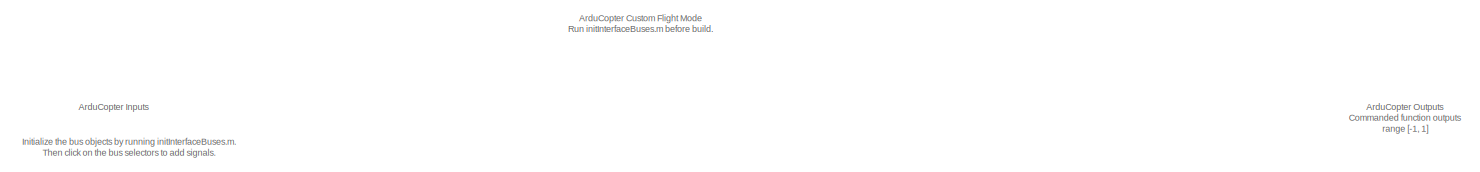
[diagram: root canvas - part 1/3, full width, top band]
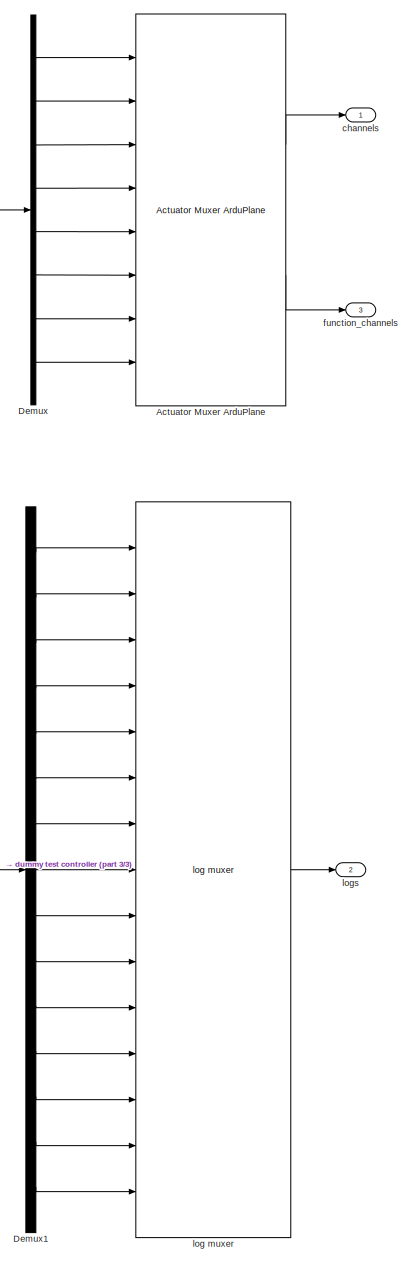
[diagram: root canvas - part 2/3, right side, full height]
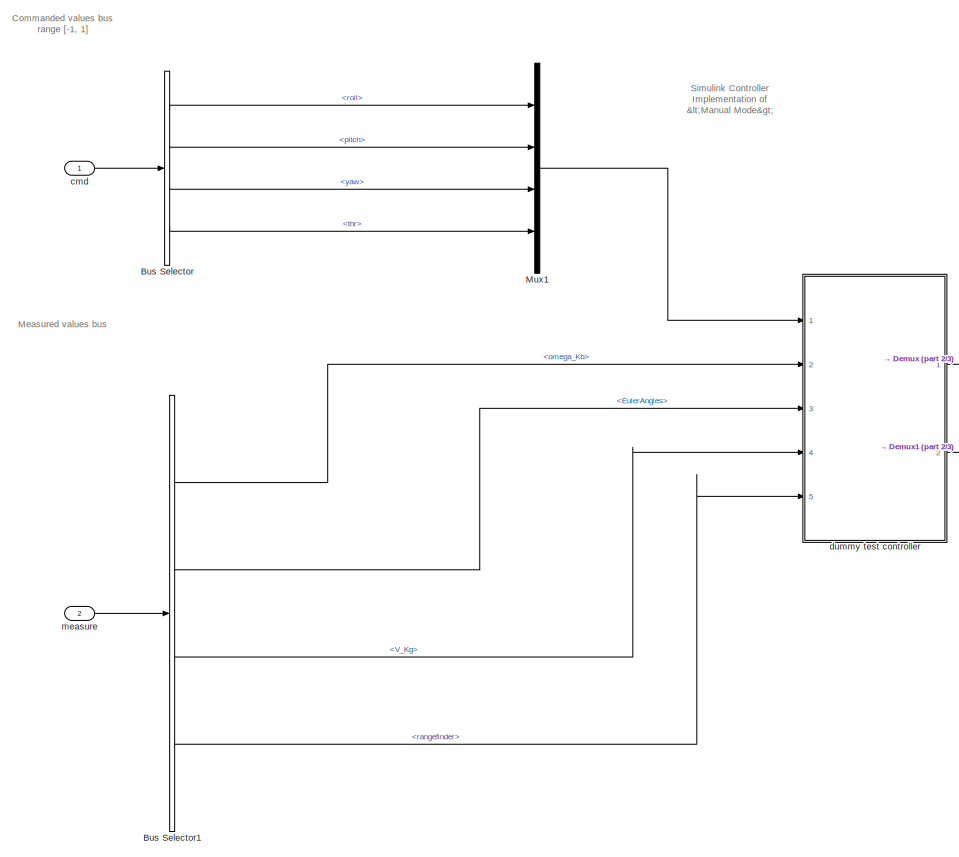
[diagram: root canvas - part 3/3, middle left region]
MODEL slx_be857f00e483
KIND model
CONFIG AbsTol = auto
CONFIG EnableMultiTasking = on
CONFIG FixedStep = 0.01
CONFIG MaxStep = auto
CONFIG MinStep = auto
CONFIG RelTol = 1e-4
CONFIG SampleTimeConstraint = Unconstrained
CONFIG Solver = FixedStepAuto
CONFIG SolverName = FixedStepAuto
CONFIG StartTime = 0.0
CONFIG StopTime = 1000
BLOCK [Reference] Actuator Muxer ArduPlane  REF=ardupilot_custom_controller_lib/Actuator Muxer ArduPlane  (lib defined in slx_bbc4fb9a1307)
  Ports = [8, 2]
  SourceBlock = ardupilot_custom_controller_lib/Actuator Muxer ArduPlane
BLOCK [BusSelector] Bus Selector
  OutputAsBus = off
  OutputSignals = roll,pitch,yaw,thr
  Ports = [1, 4]
BLOCK [BusSelector] Bus Selector1
  OutputAsBus = off
  OutputSignals = omega_Kb,EulerAngles,V_Kg,rangefinder
  Ports = [1, 4]
BLOCK [Demux] Demux
  DisplayOption = bar
  Outputs = 8
  Ports = [1, 8]
BLOCK [Demux] Demux1
  DisplayOption = bar
  Outputs = 15
  Ports = [1, 15]
BLOCK [Mux] Mux1
  DisplayOption = bar
  Ports = [4, 1]
BLOCK [Outport] channels
  IconDisplay = Port number
  OutDataTypeStr = single
  PortDimensions = [8]
BLOCK [Inport] cmd
  IconDisplay = Port number
  OutDataTypeStr = Bus: cmdBus
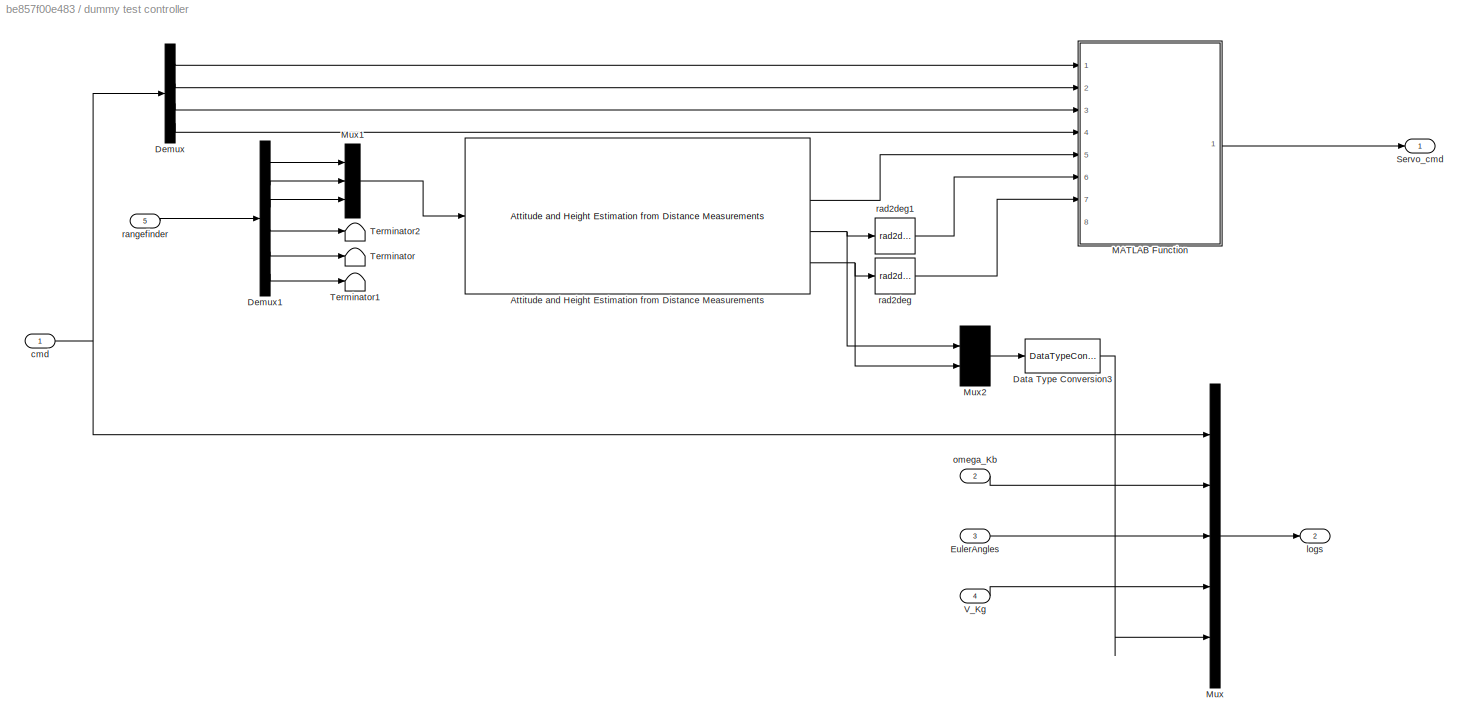
BLOCK [SubSystem] dummy test controller
  Ports = [5, 2]
  RequestExecContextInheritance = off
BLOCK [Reference] dummy test controller/Attitude and Height Estimation from Distance Measurements  REF=rangefinders_lib/Attitude and Height Estimation from Distance Measurements  (lib defined in slx_1d7e1f7fc0c8)
  Ports = [1, 4]
  SourceBlock = rangefinders_lib/Attitude and Height Estimation from Distance Measurements
BLOCK [DataTypeConversion] dummy test controller/Data Type Conversion3
  OutDataTypeStr = single
  RndMeth = Floor
  SaturateOnIntegerOverflow = off
BLOCK [Demux] dummy test controller/Demux
  DisplayOption = bar
  Ports = [1, 4]
BLOCK [Demux] dummy test controller/Demux1
  DisplayOption = bar
  Outputs = 6
  Ports = [1, 6]
BLOCK [Inport] dummy test controller/EulerAngles
  IconDisplay = Port number
  Port = 3
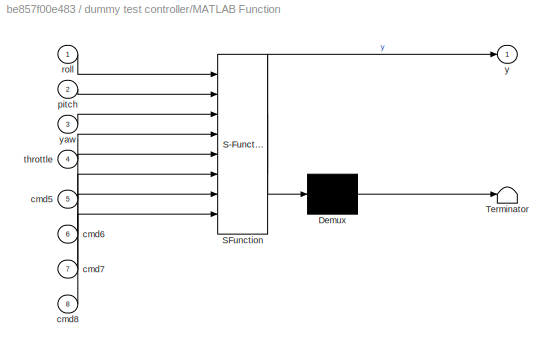
BLOCK [SubSystem] dummy test controller/MATLAB Function
  ErrorFcn = Stateflow.Translate.translate
  PermitHierarchicalResolution = ExplicitOnly
  Ports = [8, 1]
  RequestExecContextInheritance = off
  SFBlockType = MATLAB Function
  TreatAsAtomicUnit = on
BLOCK [Demux] dummy test controller/MATLAB Function/ Demux 
  Outputs = 1
  Ports = [1, 1]
BLOCK [S-Function] dummy test controller/MATLAB Function/ SFunction 
  EnableBusSupport = on
  FunctionName = sf_sfun
  PortCounts = [8 2]
  Ports = [8, 2]
  SFcnIsStateOwnerBlock = off
  SFunctionDeploymentMode = off
  Tag = Stateflow S-Function EasyGlider_ManualMode 2
BLOCK [Terminator] dummy test controller/MATLAB Function/ Terminator 
BLOCK [Inport] dummy test controller/MATLAB Function/cmd5
  IconDisplay = Port number
  Port = 5
BLOCK [Inport] dummy test controller/MATLAB Function/cmd6
  IconDisplay = Port number
  Port = 6
BLOCK [Inport] dummy test controller/MATLAB Function/cmd7
  IconDisplay = Port number
  Port = 7
BLOCK [Inport] dummy test controller/MATLAB Function/cmd8
  IconDisplay = Port number
  Port = 8
BLOCK [Inport] dummy test controller/MATLAB Function/pitch
  IconDisplay = Port number
  Port = 2
BLOCK [Inport] dummy test controller/MATLAB Function/roll
  IconDisplay = Port number
BLOCK [Inport] dummy test controller/MATLAB Function/throttle
  IconDisplay = Port number
  Port = 4
BLOCK [Outport] dummy test controller/MATLAB Function/y
  IconDisplay = Port number
BLOCK [Inport] dummy test controller/MATLAB Function/yaw
  IconDisplay = Port number
  Port = 3
BLOCK [Mux] dummy test controller/Mux
  DisplayOption = bar
  Inputs = 5
  Ports = [5, 1]
BLOCK [Mux] dummy test controller/Mux1
  DisplayOption = bar
  Inputs = 3
  Ports = [3, 1]
BLOCK [Mux] dummy test controller/Mux2
  DisplayOption = bar
  Inputs = 2
  Ports = [2, 1]
BLOCK [Outport] dummy test controller/Servo_cmd
  IconDisplay = Port number
BLOCK [Terminator] dummy test controller/Terminator
BLOCK [Terminator] dummy test controller/Terminator1
BLOCK [Terminator] dummy test controller/Terminator2
BLOCK [Inport] dummy test controller/V_Kg
  IconDisplay = Port number
  Port = 4
BLOCK [Inport] dummy test controller/cmd
  IconDisplay = Port number
BLOCK [Outport] dummy test controller/logs
  IconDisplay = Port number
  Port = 2
BLOCK [Inport] dummy test controller/omega_Kb
  IconDisplay = Port number
  Port = 2
BLOCK [Reference] dummy test controller/rad2deg  REF=unit_conversions_lib/rad2deg  (lib defined in slx_ae2855d4d91e)
  Ports = [1, 1]
  SourceBlock = unit_conversions_lib/rad2deg
BLOCK [Reference] dummy test controller/rad2deg1  REF=unit_conversions_lib/rad2deg  (lib defined in slx_ae2855d4d91e)
  Ports = [1, 1]
  SourceBlock = unit_conversions_lib/rad2deg
BLOCK [Inport] dummy test controller/rangefinder
  IconDisplay = Port number
  Port = 5
BLOCK [Outport] function_channels
  IconDisplay = Port number
  OutDataTypeStr = uint16
  Port = 3
  PortDimensions = [8]
BLOCK [Reference] log muxer  REF=ardupilot_custom_controller_lib/log muxer  (lib defined in slx_bbc4fb9a1307)
  Ports = [15, 1]
  SourceBlock = ardupilot_custom_controller_lib/log muxer
BLOCK [Outport] logs
  IconDisplay = Port number
  OutDataTypeStr = single
  Port = 2
BLOCK [Inport] measure
  IconDisplay = Port number
  OutDataTypeStr = Bus: measureBus
  Port = 2
ANNOTATION (root): Commanded values bus range [-1, 1]
ANNOTATION (root): ArduCopter Custom Flight Mode Run initInterfaceBuses.m before build.
ANNOTATION (root): ArduCopter Inputs
ANNOTATION (root): ArduCopter Outputs Commanded function outputs range [-1, 1]
ANNOTATION (root): Simulink Controller Implementation of <Manual Mode>
ANNOTATION (root): Measured values bus
ANNOTATION (root): Initialize the bus objects by running initInterfaceBuses.m. Then click on the bus selectors to add signals.
LINE Actuator Muxer ArduPlane:1 -> channels:1
LINE Actuator Muxer ArduPlane:2 -> function_channels:1
LINE Bus Selector1:1 -> dummy test controller:2
LINE Bus Selector1:2 -> dummy test controller:3
LINE Bus Selector1:3 -> dummy test controller:4
LINE Bus Selector1:4 -> dummy test controller:5
LINE Bus Selector:1 -> Mux1:1
LINE Bus Selector:2 -> Mux1:2
LINE Bus Selector:3 -> Mux1:3
LINE Bus Selector:4 -> Mux1:4
LINE Demux1:1 -> log muxer:1
LINE Demux1:10 -> log muxer:10
LINE Demux1:11 -> log muxer:11
LINE Demux1:12 -> log muxer:12
LINE Demux1:13 -> log muxer:13
LINE Demux1:14 -> log muxer:14
LINE Demux1:15 -> log muxer:15
LINE Demux1:2 -> log muxer:2
LINE Demux1:3 -> log muxer:3
LINE Demux1:4 -> log muxer:4
LINE Demux1:5 -> log muxer:5
LINE Demux1:6 -> log muxer:6
LINE Demux1:7 -> log muxer:7
LINE Demux1:8 -> log muxer:8
LINE Demux1:9 -> log muxer:9
LINE Demux:1 -> Actuator Muxer ArduPlane:1
LINE Demux:2 -> Actuator Muxer ArduPlane:2
LINE Demux:3 -> Actuator Muxer ArduPlane:3
LINE Demux:4 -> Actuator Muxer ArduPlane:4
LINE Demux:5 -> Actuator Muxer ArduPlane:5
LINE Demux:6 -> Actuator Muxer ArduPlane:6
LINE Demux:7 -> Actuator Muxer ArduPlane:7
LINE Demux:8 -> Actuator Muxer ArduPlane:8
LINE Mux1:1 -> dummy test controller:1
LINE cmd:1 -> Bus Selector:1
LINE dummy test controller/Attitude and Height Estimation from Distance Measurements:2 -> dummy test controller/MATLAB Function:5
NET dummy test controller/Attitude and Height Estimation from Distance Measurements:3 -> dummy test controller/Mux2:1, dummy test controller/rad2deg1:1
NET dummy test controller/Attitude and Height Estimation from Distance Measurements:4 -> dummy test controller/Mux2:2, dummy test controller/rad2deg:1
LINE dummy test controller/Data Type Conversion3:1 -> dummy test controller/Mux:5
LINE dummy test controller/Demux1:1 -> dummy test controller/Mux1:1
LINE dummy test controller/Demux1:2 -> dummy test controller/Mux1:2
LINE dummy test controller/Demux1:3 -> dummy test controller/Mux1:3
LINE dummy test controller/Demux1:4 -> dummy test controller/Terminator2:1
LINE dummy test controller/Demux1:5 -> dummy test controller/Terminator:1
LINE dummy test controller/Demux1:6 -> dummy test controller/Terminator1:1
LINE dummy test controller/Demux:1 -> dummy test controller/MATLAB Function:1
LINE dummy test controller/Demux:2 -> dummy test controller/MATLAB Function:2
LINE dummy test controller/Demux:3 -> dummy test controller/MATLAB Function:3
LINE dummy test controller/Demux:4 -> dummy test controller/MATLAB Function:4
LINE dummy test controller/EulerAngles:1 -> dummy test controller/Mux:3
LINE dummy test controller/MATLAB Function:1 -> dummy test controller/Servo_cmd:1
LINE dummy test controller/Mux1:1 -> dummy test controller/Attitude and Height Estimation from Distance Measurements:1
LINE dummy test controller/Mux2:1 -> dummy test controller/Data Type Conversion3:1
LINE dummy test controller/Mux:1 -> dummy test controller/logs:1
LINE dummy test controller/V_Kg:1 -> dummy test controller/Mux:4
NET dummy test controller/cmd:1 -> dummy test controller/Demux:1, dummy test controller/Mux:1
LINE dummy test controller/omega_Kb:1 -> dummy test controller/Mux:2
LINE dummy test controller/rad2deg1:1 -> dummy test controller/MATLAB Function:6
LINE dummy test controller/rad2deg:1 -> dummy test controller/MATLAB Function:7
LINE dummy test controller/rangefinder:1 -> dummy test controller/Demux1:1
LINE dummy test controller:1 -> Demux:1
LINE dummy test controller:2 -> Demux1:1
LINE log muxer:1 -> logs:1
LINE measure:1 -> Bus Selector1:1
note: NET lines group one-source signal fan-out (src -> all destinations, sorted); 1:1 wires keep LINE
CHART dummy test controller/MATLAB Function states=1 transitions=1
  STATE_LABEL 'eML_blk_kernel()'
  STATE_LABEL 'SCRIPT:\nfunction y = fcn(roll,pitch,yaw,throttle,cmd5,cmd6,cmd7,cmd8)\n\ny = single(zeros(8,1));\n\ny(1) = roll;\ny(2) = pitch;\ny(3) = throttle;\ny(4) = yaw;\ny(5) = cmd5 ;\ny(6) = cmd6 ;\ny(7) = cmd7 ;\ny(8) = cmd8 ;\n\nend\n'
